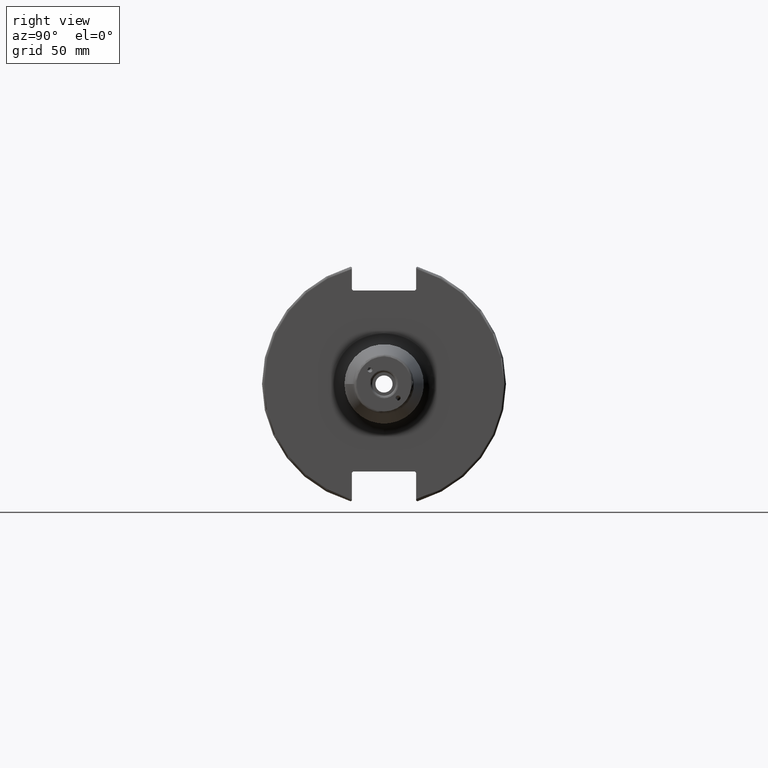
[diagram: clean part render]
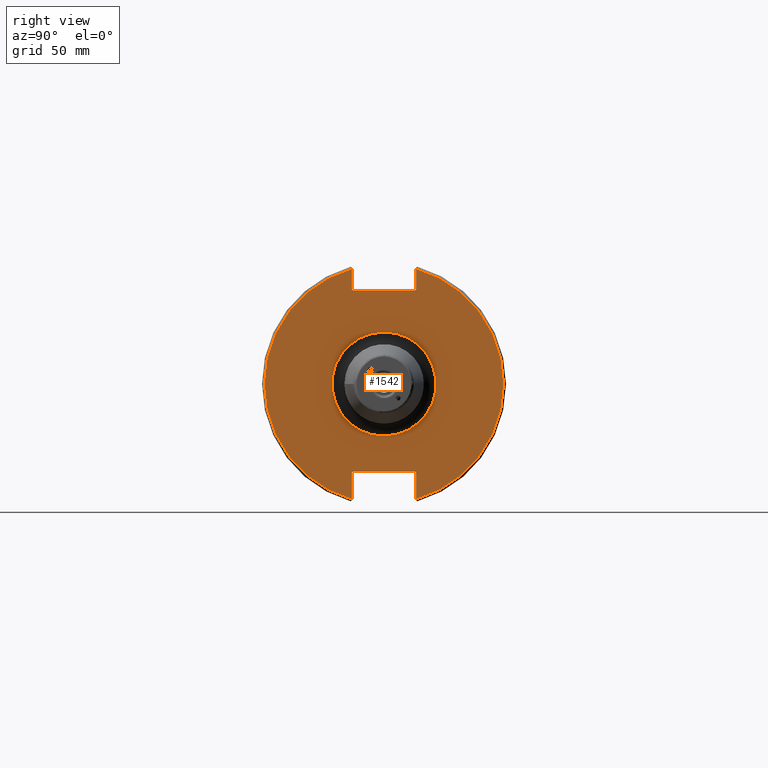
[diagram: same view with one face highlighted and labeled with its STEP entity id]
A machine part, right view. The second image highlights one B-rep face of the part: STEP entity #1542.
In plain terms, the highlighted planar face has unit normal (1, 0, 0).
Its self-contained STEP definition (entity closure, byte-faithful):
#88=LINE('',#2323,#186);
#89=LINE('',#2325,#187);
#90=LINE('',#2327,#188);
#91=LINE('',#2329,#189);
#92=LINE('',#2331,#190);
#93=LINE('',#2335,#191);
#94=LINE('',#2337,#192);
#95=LINE('',#2339,#193);
#96=LINE('',#2341,#194);
#97=LINE('',#2342,#195);
#186=VECTOR('',#1881,10.);
#187=VECTOR('',#1882,10.);
#188=VECTOR('',#1883,10.);
#189=VECTOR('',#1884,10.);
#190=VECTOR('',#1885,10.);
#191=VECTOR('',#1888,10.);
#192=VECTOR('',#1889,10.);
#193=VECTOR('',#1890,10.);
#194=VECTOR('',#1891,10.);
#195=VECTOR('',#1892,10.);
#314=FACE_BOUND('',#477,.T.);
#338=PLANE('',#1673);
#381=FACE_OUTER_BOUND('',#476,.T.);
#476=EDGE_LOOP('',(#1088,#1089,#1090,#1091,#1092,#1093,#1094,#1095,#1096,
#1097,#1098,#1099));
#477=EDGE_LOOP('',(#1100));
#592=CIRCLE('',#1670,21.);
#594=CIRCLE('',#1674,48.2125);
#595=CIRCLE('',#1675,48.2125);
#672=VERTEX_POINT('',#2312);
#673=VERTEX_POINT('',#2319);
#674=VERTEX_POINT('',#2320);
#675=VERTEX_POINT('',#2322);
#676=VERTEX_POINT('',#2324);
#677=VERTEX_POINT('',#2326);
#678=VERTEX_POINT('',#2328);
#679=VERTEX_POINT('',#2330);
#680=VERTEX_POINT('',#2332);
#681=VERTEX_POINT('',#2334);
#682=VERTEX_POINT('',#2336);
#683=VERTEX_POINT('',#2338);
#684=VERTEX_POINT('',#2340);
#834=EDGE_CURVE('',#672,#672,#592,.T.);
#837=EDGE_CURVE('',#673,#674,#594,.T.);
#838=EDGE_CURVE('',#673,#675,#88,.T.);
#839=EDGE_CURVE('',#676,#675,#89,.T.);
#840=EDGE_CURVE('',#676,#677,#90,.T.);
#841=EDGE_CURVE('',#678,#677,#91,.T.);
#842=EDGE_CURVE('',#678,#679,#92,.T.);
#843=EDGE_CURVE('',#680,#679,#595,.T.);
#844=EDGE_CURVE('',#680,#681,#93,.T.);
#845=EDGE_CURVE('',#682,#681,#94,.T.);
#846=EDGE_CURVE('',#682,#683,#95,.T.);
#847=EDGE_CURVE('',#684,#683,#96,.T.);
#848=EDGE_CURVE('',#684,#674,#97,.T.);
#1088=ORIENTED_EDGE('',*,*,#837,.F.);
#1089=ORIENTED_EDGE('',*,*,#838,.T.);
#1090=ORIENTED_EDGE('',*,*,#839,.F.);
#1091=ORIENTED_EDGE('',*,*,#840,.T.);
#1092=ORIENTED_EDGE('',*,*,#841,.F.);
#1093=ORIENTED_EDGE('',*,*,#842,.T.);
#1094=ORIENTED_EDGE('',*,*,#843,.F.);
#1095=ORIENTED_EDGE('',*,*,#844,.T.);
#1096=ORIENTED_EDGE('',*,*,#845,.F.);
#1097=ORIENTED_EDGE('',*,*,#846,.T.);
#1098=ORIENTED_EDGE('',*,*,#847,.F.);
#1099=ORIENTED_EDGE('',*,*,#848,.T.);
#1100=ORIENTED_EDGE('',*,*,#834,.F.);
#1542=ADVANCED_FACE('',(#381,#314),#338,.T.);
#1670=AXIS2_PLACEMENT_3D('',#2314,#1870,#1871);
#1673=AXIS2_PLACEMENT_3D('',#2318,#1877,#1878);
#1674=AXIS2_PLACEMENT_3D('',#2321,#1879,#1880);
#1675=AXIS2_PLACEMENT_3D('',#2333,#1886,#1887);
#1870=DIRECTION('center_axis',(1.,0.,0.));
#1871=DIRECTION('ref_axis',(0.,-1.,-1.22464679914735E-16));
#1877=DIRECTION('center_axis',(1.,0.,0.));
#1878=DIRECTION('ref_axis',(0.,0.,-1.));
#1879=DIRECTION('center_axis',(-1.,0.,0.));
#1880=DIRECTION('ref_axis',(0.,1.,-6.12323399573677E-17));
#1881=DIRECTION('',(0.,0.,-1.));
#1882=DIRECTION('',(0.,0.707106781186549,0.707106781186546));
#1883=DIRECTION('',(0.,-1.,0.));
#1884=DIRECTION('',(0.,0.707106781186549,-0.707106781186546));
#1885=DIRECTION('',(0.,0.,1.));
#1886=DIRECTION('center_axis',(-1.,0.,0.));
#1887=DIRECTION('ref_axis',(0.,-1.,1.60812264967664E-16));
#1888=DIRECTION('',(0.,0.,1.));
#1889=DIRECTION('',(0.,-0.707106781186549,-0.707106781186546));
#1890=DIRECTION('',(0.,1.,0.));
#1891=DIRECTION('',(0.,-0.707106781186549,0.707106781186546));
#1892=DIRECTION('',(0.,0.,-1.));
#2312=CARTESIAN_POINT('',(19.05,-2.57175827820944E-15,-21.));
#2314=CARTESIAN_POINT('Origin',(19.05,0.,0.));
#2318=CARTESIAN_POINT('Origin',(19.05,0.,0.));
#2319=CARTESIAN_POINT('',(19.05,12.95,46.4407434937254));
#2320=CARTESIAN_POINT('',(19.05,12.95,-46.4407434937254));
#2321=CARTESIAN_POINT('Origin',(19.05,0.,0.));
#2322=CARTESIAN_POINT('',(19.05,12.95,38.219));
#2323=CARTESIAN_POINT('',(19.05,12.95,18.8595));
#2324=CARTESIAN_POINT('',(19.05,12.45,37.719));
#2325=CARTESIAN_POINT('',(19.05,0.0327499999999836,25.30175));
#2326=CARTESIAN_POINT('',(19.05,-12.45,37.719));
#2327=CARTESIAN_POINT('',(19.05,0.,37.719));
#2328=CARTESIAN_POINT('',(19.05,-12.95,38.219));
#2329=CARTESIAN_POINT('',(19.05,-0.0327499999999817,25.30175));
#2330=CARTESIAN_POINT('',(19.05,-12.95,46.4407434937254));
#2331=CARTESIAN_POINT('',(19.05,-12.95,18.8595));
#2332=CARTESIAN_POINT('',(19.05,-12.95,-46.4407434937254));
#2333=CARTESIAN_POINT('Origin',(19.05,0.,0.));
#2334=CARTESIAN_POINT('',(19.05,-12.95,-35.806));
#2335=CARTESIAN_POINT('',(19.05,-12.95,-17.653));
#2336=CARTESIAN_POINT('',(19.05,-12.45,-35.306));
#2337=CARTESIAN_POINT('',(19.05,-0.635999999999989,-23.492));
#2338=CARTESIAN_POINT('',(19.05,12.45,-35.306));
#2339=CARTESIAN_POINT('',(19.05,-3.33066907387547E-15,-35.306));
#2340=CARTESIAN_POINT('',(19.05,12.95,-35.806));
#2341=CARTESIAN_POINT('',(19.05,0.635999999999982,-23.492));
#2342=CARTESIAN_POINT('',(19.05,12.95,-17.653));